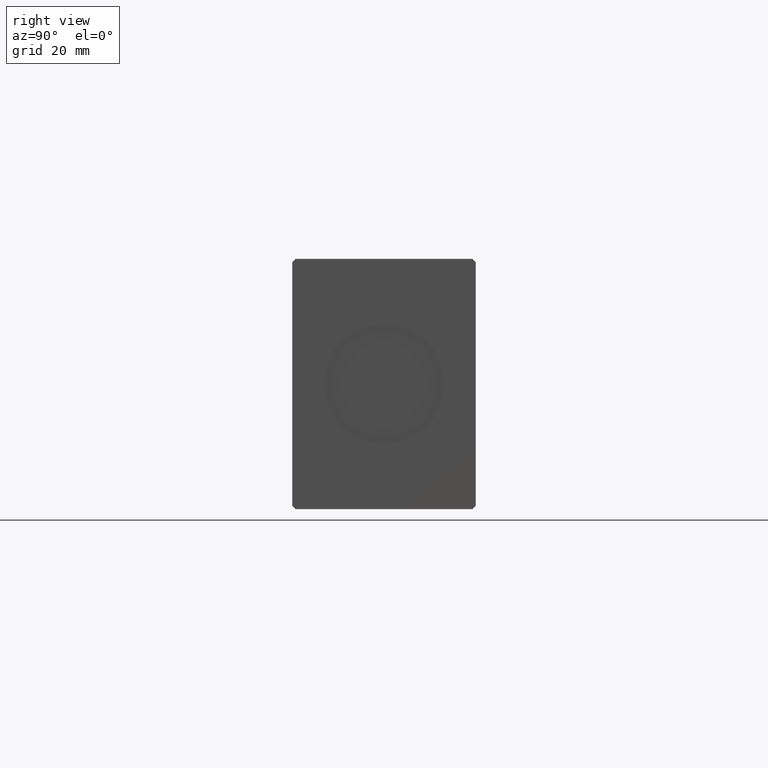
[diagram: clean part render]
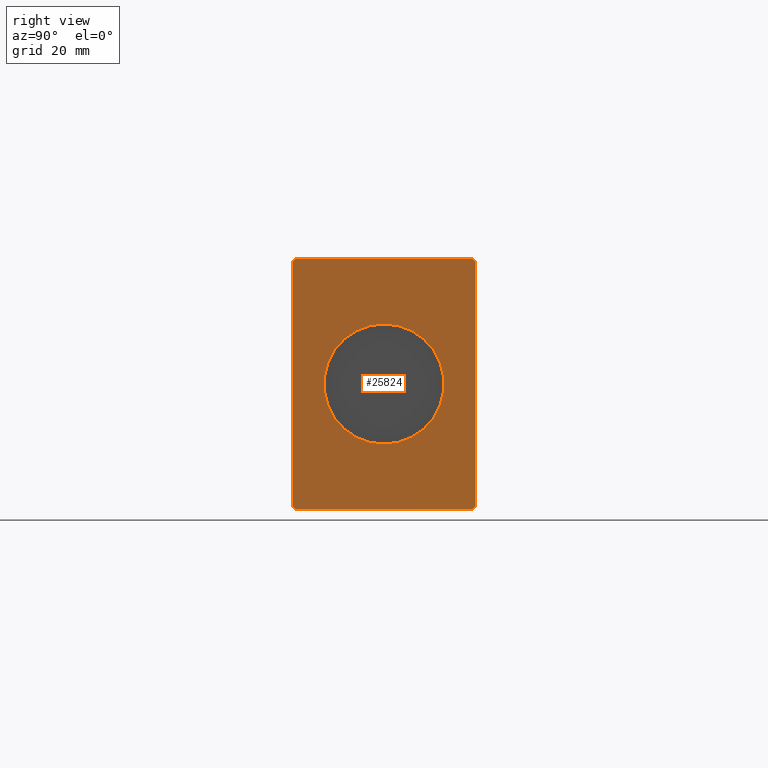
[diagram: same view with one face highlighted and labeled with its STEP entity id]
A machine part, right view. The second image highlights one B-rep face of the part: STEP entity #25824.
In plain terms, the highlighted planar face has unit normal (1, 0, 0).
Its self-contained STEP definition (entity closure, byte-faithful):
#2080 = EDGE_CURVE ( 'NONE', #7870, #22408, #26043, .T. ) ;
#3163 = VERTEX_POINT ( 'NONE', #18229 ) ;
#3563 = ORIENTED_EDGE ( 'NONE', *, *, #22822, .F. ) ;
#3965 = ORIENTED_EDGE ( 'NONE', *, *, #28977, .T. ) ;
#4853 = DIRECTION ( 'NONE',  ( 0.000000000000000000, -0.7071067811865474617, -0.7071067811865474617 ) ) ;
#4913 = AXIS2_PLACEMENT_3D ( 'NONE', #12681, #12889, #16075 ) ;
#5611 = PLANE ( 'NONE',  #24488 ) ;
#5647 = DIRECTION ( 'NONE',  ( 0.000000000000000000, 1.000000000000000000, 0.000000000000000000 ) ) ;
#6317 = DIRECTION ( 'NONE',  ( 0.000000000000000000, -1.000000000000000000, 0.000000000000000000 ) ) ;
#6456 = EDGE_LOOP ( 'NONE', ( #32227, #3563 ) ) ;
#7155 = EDGE_CURVE ( 'NONE', #13229, #3163, #19684, .T. ) ;
#7870 = VERTEX_POINT ( 'NONE', #12192 ) ;
#8103 = DIRECTION ( 'NONE',  ( 0.000000000000000000, 0.7071067811865451302, -0.7071067811865500152 ) ) ;
#8329 = ORIENTED_EDGE ( 'NONE', *, *, #23537, .T. ) ;
#8647 = LINE ( 'NONE', #33017, #18611 ) ;
#8993 = CARTESIAN_POINT ( 'NONE',  ( 185.0000000000000000, 26.50000000000000711, -37.49999999999999289 ) ) ;
#9286 = EDGE_CURVE ( 'NONE', #32809, #35479, #10689, .T. ) ;
#9892 = CARTESIAN_POINT ( 'NONE',  ( 185.0000000000000000, 0.000000000000000000, 0.000000000000000000 ) ) ;
#10689 = LINE ( 'NONE', #32083, #23025 ) ;
#10767 = VECTOR ( 'NONE', #6317, 1000.000000000000000 ) ;
#11379 = CARTESIAN_POINT ( 'NONE',  ( 185.0000000000000000, -27.50000000000000711, 36.50000000000000711 ) ) ;
#12192 = CARTESIAN_POINT ( 'NONE',  ( 185.0000000000000000, 0.000000000000000000, -18.00000000000000000 ) ) ;
#12385 = VERTEX_POINT ( 'NONE', #23871 ) ;
#12680 = VECTOR ( 'NONE', #39470, 1000.000000000000114 ) ;
#12681 = CARTESIAN_POINT ( 'NONE',  ( 185.0000000000000000, 0.000000000000000000, 0.000000000000000000 ) ) ;
#12762 = VECTOR ( 'NONE', #13696, 1000.000000000000114 ) ;
#12889 = DIRECTION ( 'NONE',  ( 1.000000000000000000, 0.000000000000000000, 0.000000000000000000 ) ) ;
#13229 = VERTEX_POINT ( 'NONE', #8993 ) ;
#13696 = DIRECTION ( 'NONE',  ( 0.000000000000000000, 0.7071067811865474617, 0.7071067811865474617 ) ) ;
#14581 = FACE_BOUND ( 'NONE', #6456, .T. ) ;
#14664 = CARTESIAN_POINT ( 'NONE',  ( 185.0000000000000000, -27.50000000000000711, 36.50000000000000711 ) ) ;
#14778 = CARTESIAN_POINT ( 'NONE',  ( 185.0000000000000000, 0.000000000000000000, 0.000000000000000000 ) ) ;
#15078 = CARTESIAN_POINT ( 'NONE',  ( 185.0000000000000000, 27.50000000000000355, 36.50000000000000711 ) ) ;
#16075 = DIRECTION ( 'NONE',  ( 0.000000000000000000, 0.000000000000000000, -1.000000000000000000 ) ) ;
#16490 = VERTEX_POINT ( 'NONE', #11379 ) ;
#17360 = CARTESIAN_POINT ( 'NONE',  ( 185.0000000000000000, 26.50000000000000355, 37.50000000000000711 ) ) ;
#17671 = CARTESIAN_POINT ( 'NONE',  ( 185.0000000000000000, 27.50000000000000711, -36.49999999999999289 ) ) ;
#17949 = VECTOR ( 'NONE', #4853, 1000.000000000000114 ) ;
#18081 = LINE ( 'NONE', #15078, #12680 ) ;
#18229 = CARTESIAN_POINT ( 'NONE',  ( 185.0000000000000000, 27.50000000000000711, -36.49999999999999289 ) ) ;
#18611 = VECTOR ( 'NONE', #5647, 1000.000000000000000 ) ;
#19684 = LINE ( 'NONE', #28890, #12762 ) ;
#19915 = VERTEX_POINT ( 'NONE', #21295 ) ;
#20183 = VECTOR ( 'NONE', #36635, 1000.000000000000000 ) ;
#21295 = CARTESIAN_POINT ( 'NONE',  ( 185.0000000000000000, 27.50000000000000355, 36.50000000000000711 ) ) ;
#21716 = CARTESIAN_POINT ( 'NONE',  ( 185.0000000000000000, 2.204364238465235428E-15, 18.00000000000000000 ) ) ;
#22408 = VERTEX_POINT ( 'NONE', #21716 ) ;
#22467 = DIRECTION ( 'NONE',  ( 1.000000000000000000, 0.000000000000000000, 0.000000000000000000 ) ) ;
#22822 = EDGE_CURVE ( 'NONE', #22408, #7870, #29052, .T. ) ;
#23025 = VECTOR ( 'NONE', #8103, 1000.000000000000114 ) ;
#23247 = EDGE_LOOP ( 'NONE', ( #23931, #35229, #31304, #8329, #31833, #37410, #33612, #3965 ) ) ;
#23537 = EDGE_CURVE ( 'NONE', #16490, #32809, #33257, .T. ) ;
#23871 = CARTESIAN_POINT ( 'NONE',  ( 185.0000000000000000, 26.50000000000000355, 37.50000000000000711 ) ) ;
#23931 = ORIENTED_EDGE ( 'NONE', *, *, #30176, .T. ) ;
#24488 = AXIS2_PLACEMENT_3D ( 'NONE', #14778, #26981, #33173 ) ;
#24878 = CARTESIAN_POINT ( 'NONE',  ( 185.0000000000000000, -26.50000000000000355, -37.49999999999999289 ) ) ;
#25355 = CARTESIAN_POINT ( 'NONE',  ( 185.0000000000000000, -26.50000000000000711, 37.50000000000000711 ) ) ;
#25824 = ADVANCED_FACE ( 'NONE', ( #14581, #26778 ), #5611, .T. ) ;
#26043 = CIRCLE ( 'NONE', #39452, 18.00000000000000000 ) ;
#26214 = LINE ( 'NONE', #32407, #17949 ) ;
#26778 = FACE_OUTER_BOUND ( 'NONE', #23247, .T. ) ;
#26981 = DIRECTION ( 'NONE',  ( 1.000000000000000000, 0.000000000000000000, 0.000000000000000000 ) ) ;
#27602 = VERTEX_POINT ( 'NONE', #25355 ) ;
#27694 = LINE ( 'NONE', #17360, #10767 ) ;
#28890 = CARTESIAN_POINT ( 'NONE',  ( 185.0000000000000000, 26.50000000000000711, -37.49999999999999289 ) ) ;
#28977 = EDGE_CURVE ( 'NONE', #3163, #19915, #35865, .T. ) ;
#29052 = CIRCLE ( 'NONE', #4913, 18.00000000000000000 ) ;
#30176 = EDGE_CURVE ( 'NONE', #19915, #12385, #18081, .T. ) ;
#30897 = EDGE_CURVE ( 'NONE', #12385, #27602, #27694, .T. ) ;
#31277 = DIRECTION ( 'NONE',  ( 0.000000000000000000, 0.000000000000000000, -1.000000000000000000 ) ) ;
#31304 = ORIENTED_EDGE ( 'NONE', *, *, #37733, .T. ) ;
#31833 = ORIENTED_EDGE ( 'NONE', *, *, #9286, .T. ) ;
#32083 = CARTESIAN_POINT ( 'NONE',  ( 185.0000000000000000, -27.50000000000000355, -36.49999999999998579 ) ) ;
#32227 = ORIENTED_EDGE ( 'NONE', *, *, #2080, .F. ) ;
#32407 = CARTESIAN_POINT ( 'NONE',  ( 185.0000000000000000, -26.50000000000000711, 37.50000000000000711 ) ) ;
#32682 = DIRECTION ( 'NONE',  ( 0.000000000000000000, -4.752667057470704875E-17, 1.000000000000000000 ) ) ;
#32809 = VERTEX_POINT ( 'NONE', #39017 ) ;
#33017 = CARTESIAN_POINT ( 'NONE',  ( 185.0000000000000000, -26.50000000000000355, -37.49999999999999289 ) ) ;
#33173 = DIRECTION ( 'NONE',  ( 0.000000000000000000, 0.000000000000000000, -1.000000000000000000 ) ) ;
#33257 = LINE ( 'NONE', #14664, #20183 ) ;
#33612 = ORIENTED_EDGE ( 'NONE', *, *, #7155, .T. ) ;
#35031 = VECTOR ( 'NONE', #32682, 1000.000000000000000 ) ;
#35229 = ORIENTED_EDGE ( 'NONE', *, *, #30897, .T. ) ;
#35479 = VERTEX_POINT ( 'NONE', #24878 ) ;
#35865 = LINE ( 'NONE', #17671, #35031 ) ;
#36635 = DIRECTION ( 'NONE',  ( 0.000000000000000000, 4.752667057470705491E-17, -1.000000000000000000 ) ) ;
#37410 = ORIENTED_EDGE ( 'NONE', *, *, #39430, .T. ) ;
#37733 = EDGE_CURVE ( 'NONE', #27602, #16490, #26214, .T. ) ;
#39017 = CARTESIAN_POINT ( 'NONE',  ( 185.0000000000000000, -27.50000000000000355, -36.49999999999998579 ) ) ;
#39430 = EDGE_CURVE ( 'NONE', #35479, #13229, #8647, .T. ) ;
#39452 = AXIS2_PLACEMENT_3D ( 'NONE', #9892, #22467, #31277 ) ;
#39470 = DIRECTION ( 'NONE',  ( 0.000000000000000000, -0.7071067811865474617, 0.7071067811865474617 ) ) ;